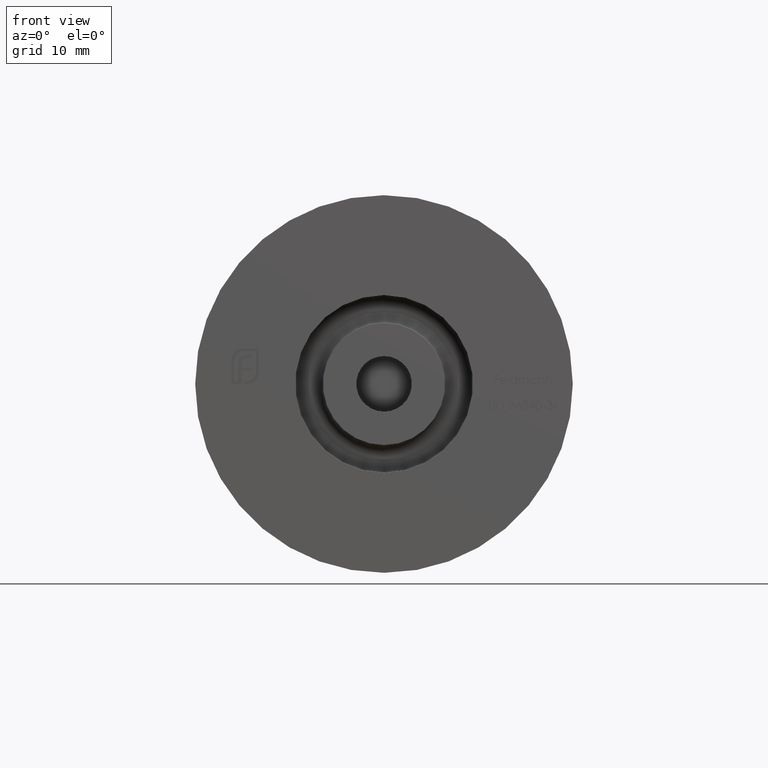
[diagram: clean part render]
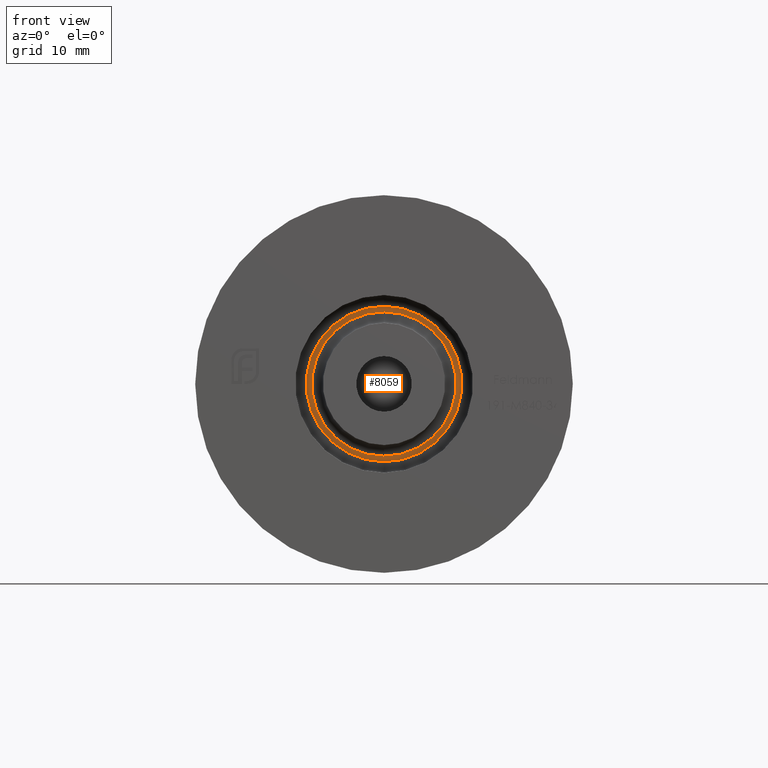
[diagram: same view with one face highlighted and labeled with its STEP entity id]
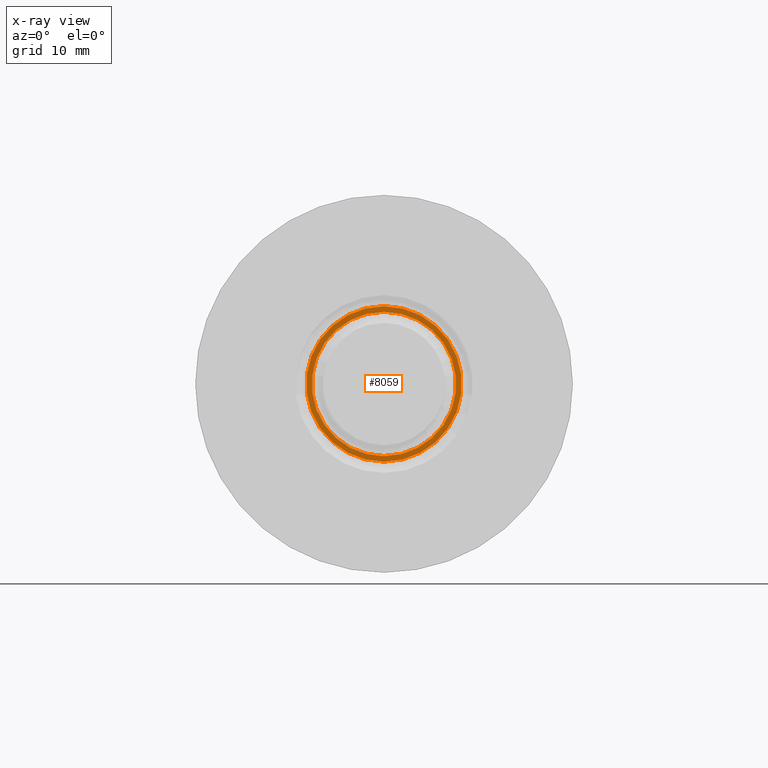
[diagram: x-ray of the same camera — body ghosted, the highlighted face saturated]
A machine part, front view. The second image highlights one B-rep face of the part: STEP entity #8059.
The next image is the same camera in x-ray: the body ghosted, the highlighted face saturated — about 0% of this face is hidden behind the body in this view.
In plain terms, the highlighted planar face has unit normal (0, -1, 0).
Its self-contained STEP definition (entity closure, byte-faithful):
#186 = VERTEX_POINT ( 'NONE', #11827 ) ;
#348 = DIRECTION ( 'NONE',  ( 0.000000000000000000, 0.000000000000000000, -1.000000000000000000 ) ) ;
#554 = DIRECTION ( 'NONE',  ( 0.000000000000000000, -1.000000000000000000, 0.000000000000000000 ) ) ;
#1663 = DIRECTION ( 'NONE',  ( 0.000000000000000000, -0.000000000000000000, -1.000000000000000000 ) ) ;
#1863 = CARTESIAN_POINT ( 'NONE',  ( 0.000000000000000000, 3.000000000000000888, -6.500000000000000000 ) ) ;
#1906 = DIRECTION ( 'NONE',  ( 0.000000000000000000, 0.000000000000000000, -1.000000000000000000 ) ) ;
#2116 = DIRECTION ( 'NONE',  ( 0.000000000000000000, 0.000000000000000000, -1.000000000000000000 ) ) ;
#2276 = EDGE_CURVE ( 'NONE', #186, #14742, #10209, .T. ) ;
#2369 = EDGE_CURVE ( 'NONE', #5815, #13255, #5276, .T. ) ;
#2788 = CARTESIAN_POINT ( 'NONE',  ( 0.000000000000000000, 3.000000000000000000, 0.000000000000000000 ) ) ;
#3111 = CIRCLE ( 'NONE', #4943, 6.500000000000000000 ) ;
#4154 = FACE_OUTER_BOUND ( 'NONE', #13703, .T. ) ;
#4864 = CARTESIAN_POINT ( 'NONE',  ( 0.000000000000000000, 3.000000000000000000, 0.000000000000000000 ) ) ;
#4912 = FACE_BOUND ( 'NONE', #8988, .T. ) ;
#4943 = AXIS2_PLACEMENT_3D ( 'NONE', #4864, #11902, #7322 ) ;
#5276 = CIRCLE ( 'NONE', #10200, 6.500000000000000000 ) ;
#5530 = CARTESIAN_POINT ( 'NONE',  ( 0.000000000000000000, 3.000000000000000000, 0.000000000000000000 ) ) ;
#5815 = VERTEX_POINT ( 'NONE', #1863 ) ;
#7322 = DIRECTION ( 'NONE',  ( 0.000000000000000000, 0.000000000000000000, -1.000000000000000000 ) ) ;
#8059 = ADVANCED_FACE ( 'NONE', ( #4154, #4912 ), #11037, .T. ) ;
#8216 = CARTESIAN_POINT ( 'NONE',  ( 0.000000000000000000, 3.000000000000000000, -7.000000000000001776 ) ) ;
#8988 = EDGE_LOOP ( 'NONE', ( #9475, #12407 ) ) ;
#9048 = DIRECTION ( 'NONE',  ( 0.000000000000000000, -1.000000000000000000, 0.000000000000000000 ) ) ;
#9475 = ORIENTED_EDGE ( 'NONE', *, *, #2369, .T. ) ;
#9657 = ORIENTED_EDGE ( 'NONE', *, *, #2276, .T. ) ;
#10200 = AXIS2_PLACEMENT_3D ( 'NONE', #10923, #13086, #348 ) ;
#10209 = CIRCLE ( 'NONE', #13368, 7.000000000000001776 ) ;
#10217 = AXIS2_PLACEMENT_3D ( 'NONE', #2788, #554, #1663 ) ;
#10251 = CARTESIAN_POINT ( 'NONE',  ( 0.000000000000000000, 3.000000000000000000, 0.000000000000000000 ) ) ;
#10923 = CARTESIAN_POINT ( 'NONE',  ( 0.000000000000000000, 3.000000000000000000, 0.000000000000000000 ) ) ;
#11037 = PLANE ( 'NONE',  #10217 ) ;
#11827 = CARTESIAN_POINT ( 'NONE',  ( 9.184850993605151889E-16, 3.000000000000000000, 7.000000000000001776 ) ) ;
#11902 = DIRECTION ( 'NONE',  ( -0.000000000000000000, 1.000000000000000000, -0.000000000000000000 ) ) ;
#12201 = CIRCLE ( 'NONE', #14201, 7.000000000000001776 ) ;
#12407 = ORIENTED_EDGE ( 'NONE', *, *, #15095, .T. ) ;
#12622 = DIRECTION ( 'NONE',  ( 0.000000000000000000, -1.000000000000000000, 0.000000000000000000 ) ) ;
#12965 = EDGE_CURVE ( 'NONE', #14742, #186, #12201, .T. ) ;
#13086 = DIRECTION ( 'NONE',  ( -0.000000000000000000, 1.000000000000000000, -0.000000000000000000 ) ) ;
#13255 = VERTEX_POINT ( 'NONE', #14413 ) ;
#13368 = AXIS2_PLACEMENT_3D ( 'NONE', #10251, #12622, #2116 ) ;
#13703 = EDGE_LOOP ( 'NONE', ( #15176, #9657 ) ) ;
#14201 = AXIS2_PLACEMENT_3D ( 'NONE', #5530, #9048, #1906 ) ;
#14413 = CARTESIAN_POINT ( 'NONE',  ( 7.960204194457795477E-16, 3.000000000000000888, 6.500000000000000000 ) ) ;
#14742 = VERTEX_POINT ( 'NONE', #8216 ) ;
#15095 = EDGE_CURVE ( 'NONE', #13255, #5815, #3111, .T. ) ;
#15176 = ORIENTED_EDGE ( 'NONE', *, *, #12965, .T. ) ;